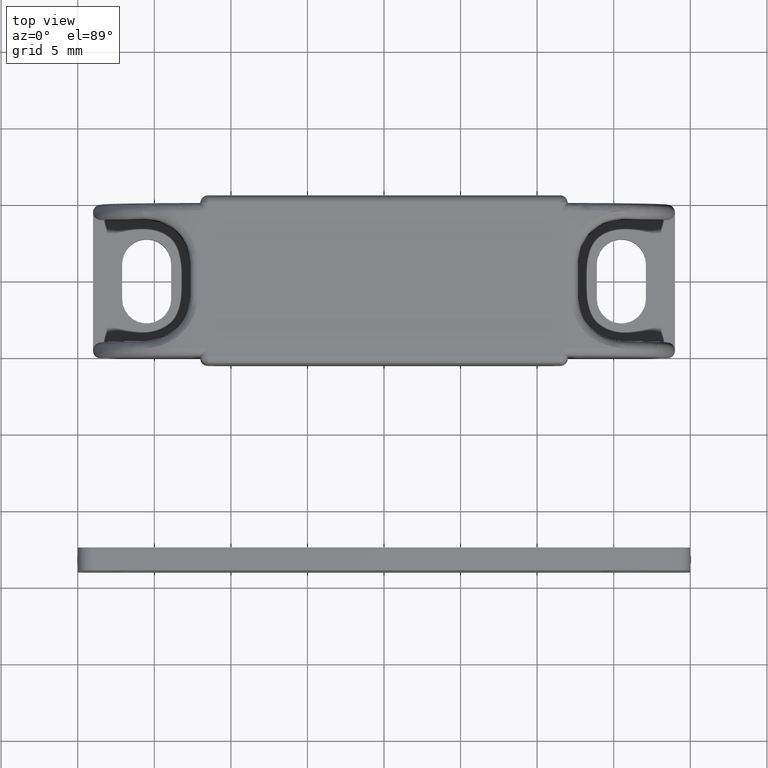
[diagram: clean part render]
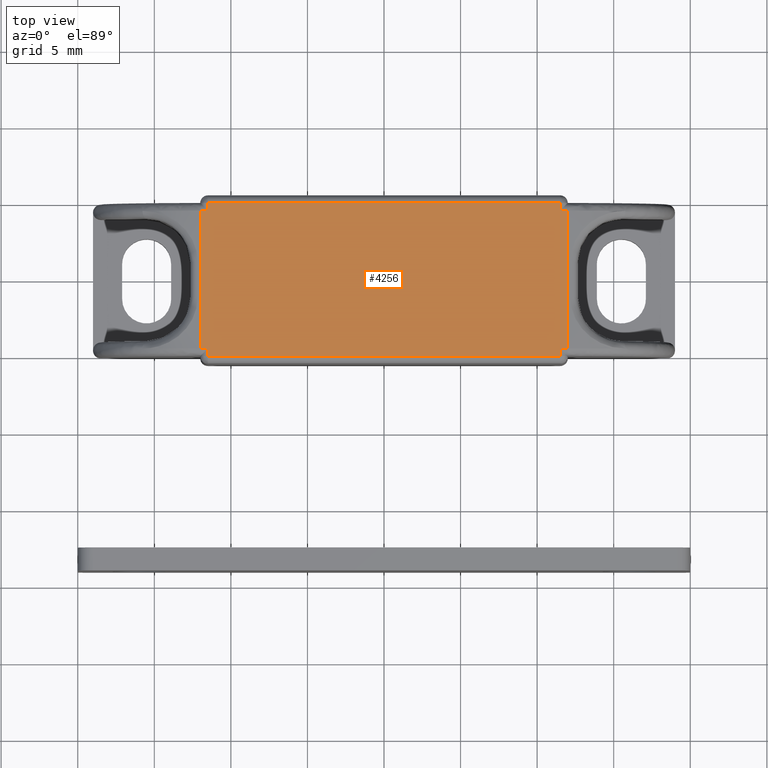
[diagram: same view with one face highlighted and labeled with its STEP entity id]
A machine part, top view. The second image highlights one B-rep face of the part: STEP entity #4256.
In plain terms, the highlighted face is a freeform B-spline surface patch.
Its self-contained STEP definition (entity closure, byte-faithful):
#2863=CARTESIAN_POINT('',(-11.500000000000000,-4.499999999999949,9.0));
#2864=VERTEX_POINT('',#2863);
#2865=CARTESIAN_POINT('',(-11.500000000000000,-5.0,9.0));
#2866=VERTEX_POINT('',#2865);
#2867=CARTESIAN_POINT('',(-11.500000000000000,-4.499999999999949,9.0));
#2868=CARTESIAN_POINT('',(-11.500000000000000,-5.0,9.0));
#2869=QUASI_UNIFORM_CURVE('',1,(#2867,#2868),.UNSPECIFIED.,.F.,.U.);
#2870=EDGE_CURVE('',#2864,#2866,#2869,.T.);
#2975=CARTESIAN_POINT('',(-12.0,-4.500000000000060,9.0));
#2976=VERTEX_POINT('',#2975);
#2977=CARTESIAN_POINT('',(-12.0,-4.500000000000060,9.0));
#2978=CARTESIAN_POINT('',(-11.500000000000000,-4.499999999999949,9.0));
#2979=QUASI_UNIFORM_CURVE('',1,(#2977,#2978),.UNSPECIFIED.,.F.,.U.);
#2980=EDGE_CURVE('',#2976,#2864,#2979,.T.);
#3060=CARTESIAN_POINT('',(11.499999999999799,-5.0,9.0));
#3061=VERTEX_POINT('',#3060);
#3075=CARTESIAN_POINT('',(-11.500000000000000,-5.0,9.0));
#3076=CARTESIAN_POINT('',(11.499999999999799,-5.0,9.0));
#3077=QUASI_UNIFORM_CURVE('',1,(#3075,#3076),.UNSPECIFIED.,.F.,.U.);
#3078=EDGE_CURVE('',#2866,#3061,#3077,.T.);
#3320=CARTESIAN_POINT('',(11.499999999999799,-4.500000000000000,9.0));
#3321=VERTEX_POINT('',#3320);
#3335=CARTESIAN_POINT('',(11.499999999999799,-5.0,9.0));
#3336=CARTESIAN_POINT('',(11.499999999999799,-4.500000000000000,9.0));
#3337=QUASI_UNIFORM_CURVE('',1,(#3335,#3336),.UNSPECIFIED.,.F.,.U.);
#3338=EDGE_CURVE('',#3061,#3321,#3337,.T.);
#3358=CARTESIAN_POINT('',(11.999999999999799,-4.500000000000060,9.0));
#3359=VERTEX_POINT('',#3358);
#3373=CARTESIAN_POINT('',(11.499999999999799,-4.500000000000000,9.0));
#3374=CARTESIAN_POINT('',(11.999999999999799,-4.500000000000060,9.0));
#3375=QUASI_UNIFORM_CURVE('',1,(#3373,#3374),.UNSPECIFIED.,.F.,.U.);
#3376=EDGE_CURVE('',#3321,#3359,#3375,.T.);
#3528=CARTESIAN_POINT('',(11.499999999999799,5.0,9.0));
#3529=VERTEX_POINT('',#3528);
#3543=CARTESIAN_POINT('',(11.499999999999799,4.499999999999949,9.0));
#3544=VERTEX_POINT('',#3543);
#3545=CARTESIAN_POINT('',(11.499999999999799,4.499999999999949,9.0));
#3546=CARTESIAN_POINT('',(11.499999999999799,5.0,9.0));
#3547=QUASI_UNIFORM_CURVE('',1,(#3545,#3546),.UNSPECIFIED.,.F.,.U.);
#3548=EDGE_CURVE('',#3544,#3529,#3547,.T.);
#3580=CARTESIAN_POINT('',(11.999999999999799,4.500000000000060,9.0));
#3581=VERTEX_POINT('',#3580);
#3582=CARTESIAN_POINT('',(11.999999999999799,4.500000000000060,9.0));
#3583=CARTESIAN_POINT('',(11.499999999999799,4.499999999999949,9.0));
#3584=QUASI_UNIFORM_CURVE('',1,(#3582,#3583),.UNSPECIFIED.,.F.,.U.);
#3585=EDGE_CURVE('',#3581,#3544,#3584,.T.);
#3806=CARTESIAN_POINT('',(-11.500000000000000,5.0,9.0));
#3807=VERTEX_POINT('',#3806);
#3821=CARTESIAN_POINT('',(11.499999999999799,5.0,9.0));
#3822=CARTESIAN_POINT('',(-11.500000000000000,5.0,9.0));
#3823=QUASI_UNIFORM_CURVE('',1,(#3821,#3822),.UNSPECIFIED.,.F.,.U.);
#3824=EDGE_CURVE('',#3529,#3807,#3823,.T.);
#3995=CARTESIAN_POINT('',(-11.500000000000000,4.500000000000060,9.0));
#3996=VERTEX_POINT('',#3995);
#4010=CARTESIAN_POINT('',(-11.500000000000000,5.0,9.0));
#4011=CARTESIAN_POINT('',(-11.500000000000000,4.500000000000060,9.0));
#4012=QUASI_UNIFORM_CURVE('',1,(#4010,#4011),.UNSPECIFIED.,.F.,.U.);
#4013=EDGE_CURVE('',#3807,#3996,#4012,.T.);
#4033=CARTESIAN_POINT('',(-12.0,4.500000000000060,9.0));
#4034=VERTEX_POINT('',#4033);
#4048=CARTESIAN_POINT('',(-11.500000000000000,4.500000000000060,9.0));
#4049=CARTESIAN_POINT('',(-12.0,4.500000000000060,9.0));
#4050=QUASI_UNIFORM_CURVE('',1,(#4048,#4049),.UNSPECIFIED.,.F.,.U.);
#4051=EDGE_CURVE('',#3996,#4034,#4050,.T.);
#4229=CARTESIAN_POINT('',(13.198799953483130,-5.499499980618060,9.0));
#4230=CARTESIAN_POINT('',(-13.198800597213500,-5.499499980618060,9.0));
#4231=CARTESIAN_POINT('',(13.198799953483130,5.499500248838961,9.0));
#4232=CARTESIAN_POINT('',(-13.198800597213500,5.499500248838961,9.0));
#4233=B_SPLINE_SURFACE_WITH_KNOTS('',1,1,((#4229,#4231),(#4230,#4232)),.UNSPECIFIED.,.F.,.F.,.U.,(2,2),(2,2),(0.0,26.397600550696630),(0.0,10.999000229457019),.UNSPECIFIED.);
#4234=ORIENTED_EDGE('',*,*,#4013,.T.);
#4235=ORIENTED_EDGE('',*,*,#4051,.T.);
#4236=CARTESIAN_POINT('',(-12.0,4.500000000000060,9.0));
#4237=CARTESIAN_POINT('',(-12.0,-4.500000000000060,9.0));
#4238=QUASI_UNIFORM_CURVE('',1,(#4236,#4237),.UNSPECIFIED.,.F.,.U.);
#4239=EDGE_CURVE('',#4034,#2976,#4238,.T.);
#4240=ORIENTED_EDGE('',*,*,#4239,.T.);
#4241=ORIENTED_EDGE('',*,*,#2980,.T.);
#4242=ORIENTED_EDGE('',*,*,#2870,.T.);
#4243=ORIENTED_EDGE('',*,*,#3078,.T.);
#4244=ORIENTED_EDGE('',*,*,#3338,.T.);
#4245=ORIENTED_EDGE('',*,*,#3376,.T.);
#4246=CARTESIAN_POINT('',(11.999999999999799,4.500000000000060,9.0));
#4247=CARTESIAN_POINT('',(11.999999999999799,-4.500000000000060,9.0));
#4248=QUASI_UNIFORM_CURVE('',1,(#4246,#4247),.UNSPECIFIED.,.F.,.U.);
#4249=EDGE_CURVE('',#3581,#3359,#4248,.T.);
#4250=ORIENTED_EDGE('',*,*,#4249,.F.);
#4251=ORIENTED_EDGE('',*,*,#3585,.T.);
#4252=ORIENTED_EDGE('',*,*,#3548,.T.);
#4253=ORIENTED_EDGE('',*,*,#3824,.T.);
#4254=EDGE_LOOP('',(#4234,#4235,#4240,#4241,#4242,#4243,#4244,#4245,#4250,#4251,#4252,#4253));
#4255=FACE_OUTER_BOUND('',#4254,.T.);
#4256=ADVANCED_FACE('',(#4255),#4233,.F.);